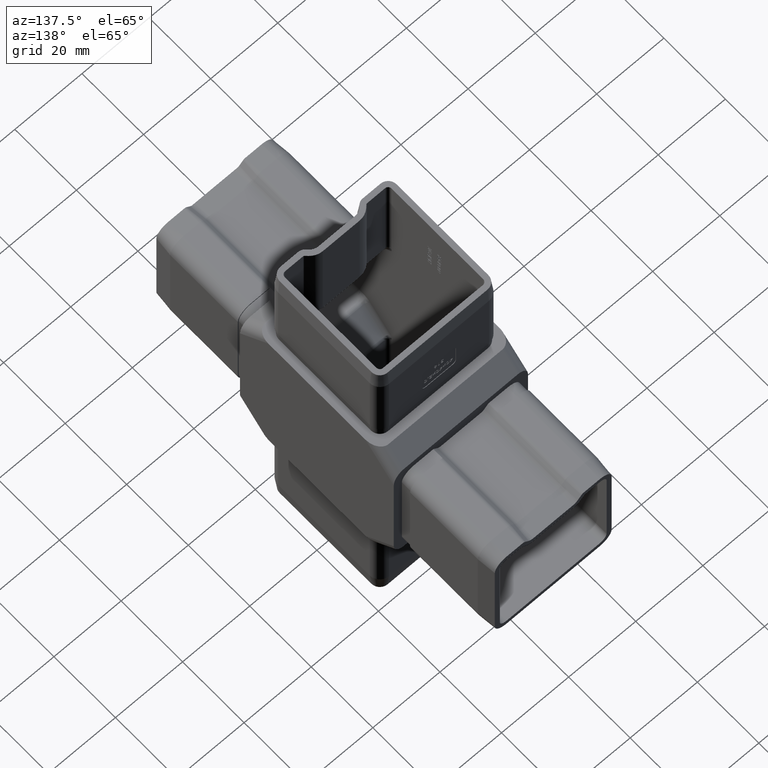
[diagram: clean part render]
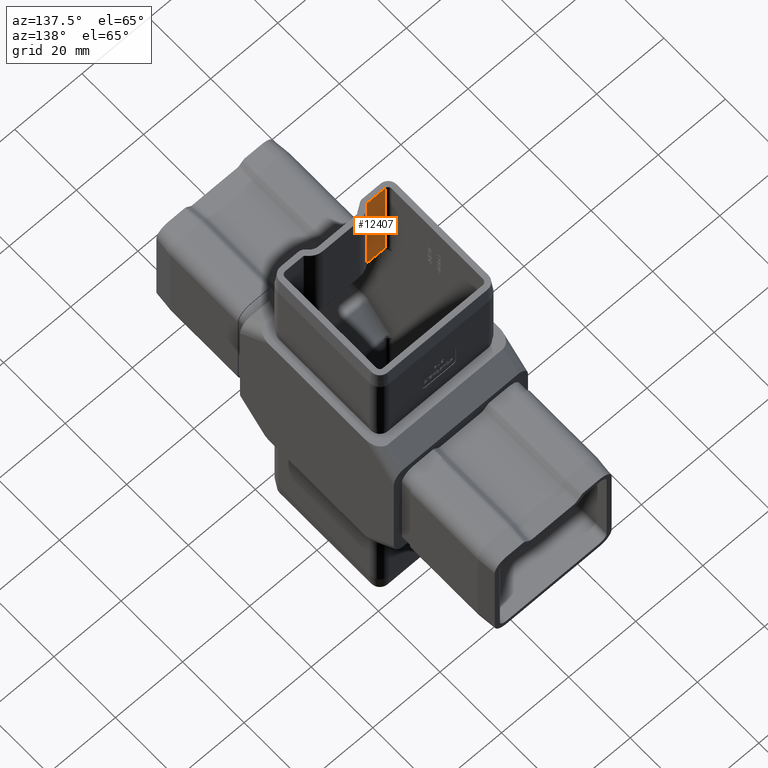
[diagram: same view with one face highlighted and labeled with its STEP entity id]
A machine part, auxiliary view. The second image highlights one B-rep face of the part: STEP entity #12407.
In plain terms, the highlighted planar face has unit normal (0, 1, -0).
Its self-contained STEP definition (entity closure, byte-faithful):
#291 = DIRECTION ( 'NONE',  ( -1.000000000000000000, 0.0000000000000000000, 0.0000000000000000000 ) ) ;
#784 = DIRECTION ( 'NONE',  ( -0.0000000000000000000, -0.0000000000000000000, -1.000000000000000000 ) ) ;
#1246 = CARTESIAN_POINT ( 'NONE',  ( -9.518574986800866000, -15.89999999999999700, 55.00000000000000000 ) ) ;
#1718 = EDGE_LOOP ( 'NONE', ( #12843, #26723, #5588, #5232 ) ) ;
#4108 = EDGE_CURVE ( 'NONE', #31038, #15445, #9707, .T. ) ;
#5232 = ORIENTED_EDGE ( 'NONE', *, *, #19821, .T. ) ;
#5588 = ORIENTED_EDGE ( 'NONE', *, *, #4108, .F. ) ;
#5648 = VECTOR ( 'NONE', #784, 1000.000000000000000 ) ;
#6035 = DIRECTION ( 'NONE',  ( 0.0000000000000000000, 0.0000000000000000000, 1.000000000000000000 ) ) ;
#6246 = PLANE ( 'NONE',  #17850 ) ;
#9673 = VERTEX_POINT ( 'NONE', #28138 ) ;
#9707 = LINE ( 'NONE', #22322, #13861 ) ;
#10023 = VECTOR ( 'NONE', #291, 1000.000000000000000 ) ;
#10671 = CARTESIAN_POINT ( 'NONE',  ( -14.90000000000000700, -15.89999999999999700, 55.00000000000000000 ) ) ;
#12139 = CARTESIAN_POINT ( 'NONE',  ( -9.518574986800866000, -15.89999999999999700, 23.92304473782996200 ) ) ;
#12407 = ADVANCED_FACE ( 'NONE', ( #30383 ), #6246, .T. ) ;
#12843 = ORIENTED_EDGE ( 'NONE', *, *, #23902, .T. ) ;
#13263 = CARTESIAN_POINT ( 'NONE',  ( -9.518574986800866000, -15.89999999999999700, 55.00000000000000000 ) ) ;
#13861 = VECTOR ( 'NONE', #20112, 1000.000000000000000 ) ;
#15445 = VERTEX_POINT ( 'NONE', #26587 ) ;
#15692 = DIRECTION ( 'NONE',  ( 1.000000000000000000, -0.0000000000000000000, -0.0000000000000000000 ) ) ;
#17850 = AXIS2_PLACEMENT_3D ( 'NONE', #1246, #22854, #6035 ) ;
#18403 = VECTOR ( 'NONE', #15692, 1000.000000000000000 ) ;
#19620 = CARTESIAN_POINT ( 'NONE',  ( -9.518574986800866000, -15.89999999999999700, 23.92304473782995400 ) ) ;
#19821 = EDGE_CURVE ( 'NONE', #31038, #9673, #30426, .T. ) ;
#20112 = DIRECTION ( 'NONE',  ( -0.0000000000000000000, -0.0000000000000000000, -1.000000000000000000 ) ) ;
#22322 = CARTESIAN_POINT ( 'NONE',  ( -14.90000000000000700, -15.89999999999999700, 55.00000000000000000 ) ) ;
#22854 = DIRECTION ( 'NONE',  ( 0.0000000000000000000, 1.000000000000000000, -0.0000000000000000000 ) ) ;
#23902 = EDGE_CURVE ( 'NONE', #9673, #28096, #26383, .T. ) ;
#26383 = LINE ( 'NONE', #31268, #5648 ) ;
#26587 = CARTESIAN_POINT ( 'NONE',  ( -14.90000000000000700, -15.89999999999999700, 23.92304473782996200 ) ) ;
#26723 = ORIENTED_EDGE ( 'NONE', *, *, #28173, .T. ) ;
#26981 = LINE ( 'NONE', #19620, #10023 ) ;
#28096 = VERTEX_POINT ( 'NONE', #12139 ) ;
#28138 = CARTESIAN_POINT ( 'NONE',  ( -9.518574986800866000, -15.89999999999999700, 55.00000000000000000 ) ) ;
#28173 = EDGE_CURVE ( 'NONE', #28096, #15445, #26981, .T. ) ;
#30383 = FACE_OUTER_BOUND ( 'NONE', #1718, .T. ) ;
#30426 = LINE ( 'NONE', #13263, #18403 ) ;
#31038 = VERTEX_POINT ( 'NONE', #10671 ) ;
#31268 = CARTESIAN_POINT ( 'NONE',  ( -9.518574986800866000, -15.89999999999999700, 55.00000000000000000 ) ) ;